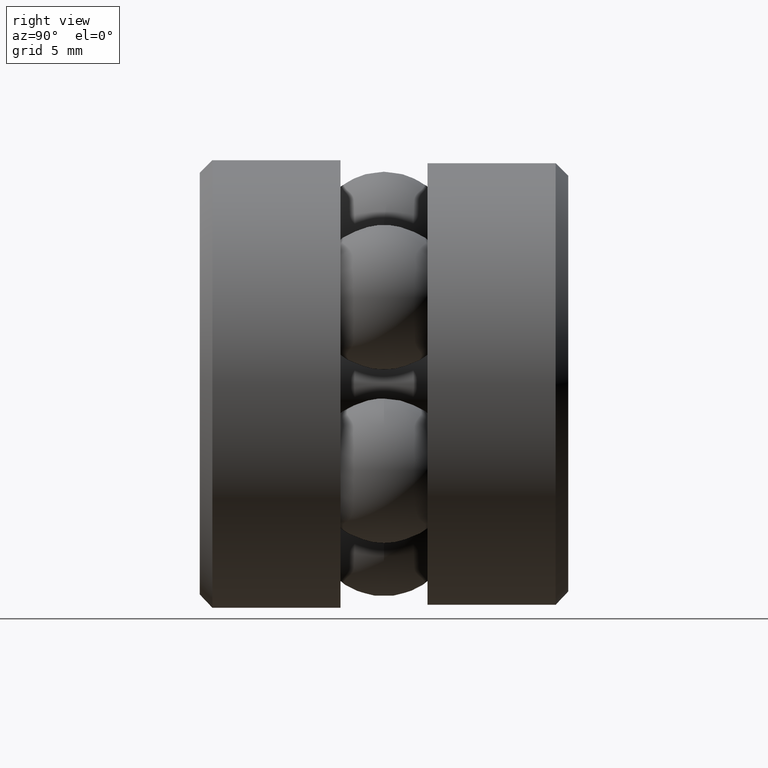
[diagram: clean part render]
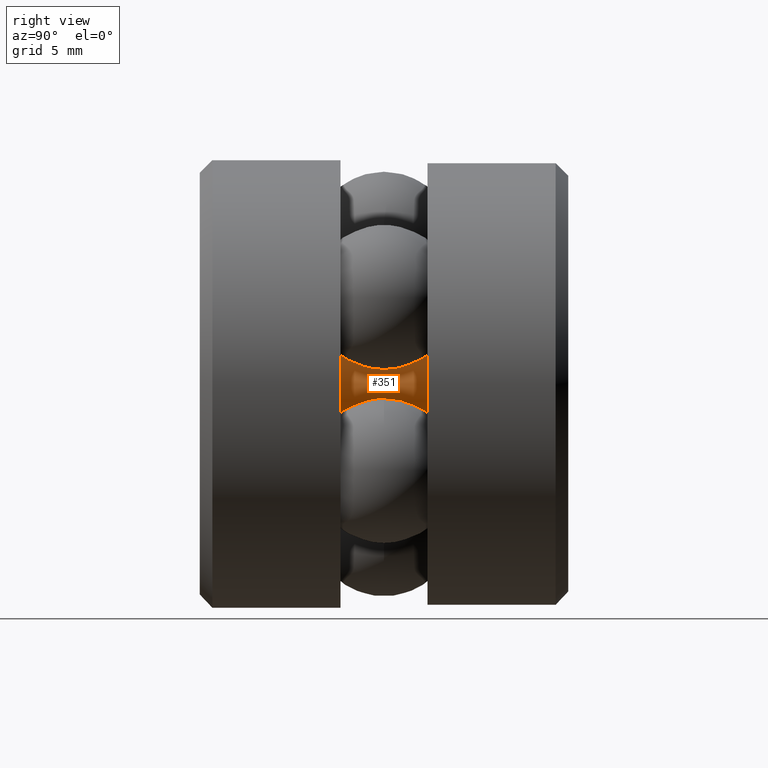
[diagram: same view with one face highlighted and labeled with its STEP entity id]
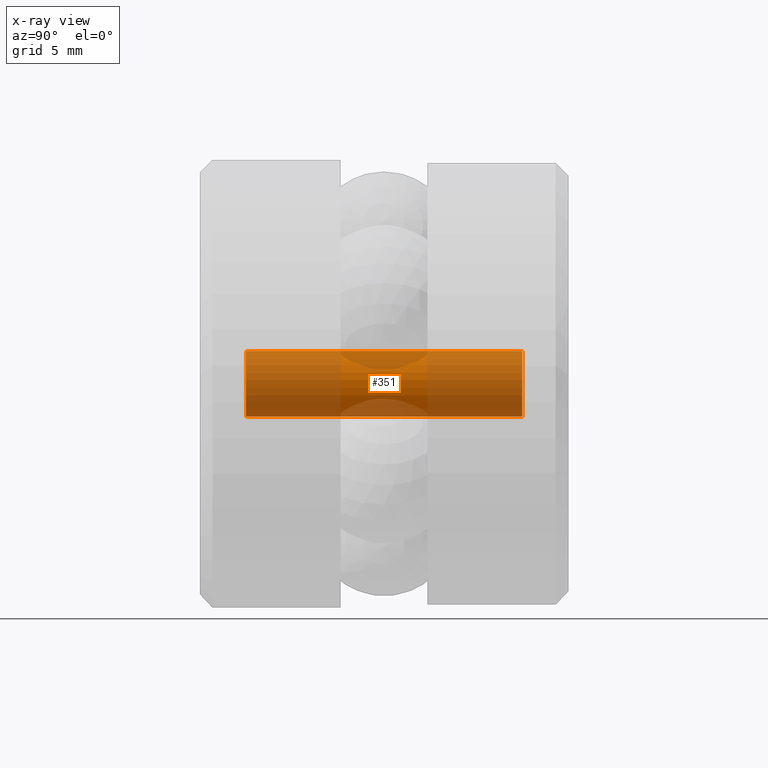
[diagram: x-ray of the same camera — body ghosted, the highlighted face saturated]
A machine part, right view. The second image highlights one B-rep face of the part: STEP entity #351.
The next image is the same camera in x-ray: the body ghosted, the highlighted face saturated — about 81% of this face is hidden behind the body in this view.
In plain terms, the highlighted cylindrical surface (bore or boss wall) has radius 1.9812 mm, axis along (-0, 1, -0).
Its self-contained STEP definition (entity closure, byte-faithful):
#19 = CARTESIAN_POINT ( 'NONE',  ( 0.0000000000000000000, 0.7656250000000000000, 0.07800000000000012500 ) ) ;
#83 = DIRECTION ( 'NONE',  ( 0.0000000000000000000, 0.0000000000000000000, 1.000000000000000000 ) ) ;
#100 = DIRECTION ( 'NONE',  ( -0.0000000000000000000, 1.000000000000000000, -0.0000000000000000000 ) ) ;
#106 = DIRECTION ( 'NONE',  ( 0.0000000000000000000, 0.0000000000000000000, 1.000000000000000000 ) ) ;
#121 = ORIENTED_EDGE ( 'NONE', *, *, #386, .T. ) ;
#126 = CARTESIAN_POINT ( 'NONE',  ( 0.0000000000000000000, 0.0000000000000000000, 0.0000000000000000000 ) ) ;
#150 = FACE_OUTER_BOUND ( 'NONE', #461, .T. ) ;
#169 = CIRCLE ( 'NONE', #467, 0.07800000000000012500 ) ;
#220 = EDGE_LOOP ( 'NONE', ( #374 ) ) ;
#224 = DIRECTION ( 'NONE',  ( 0.0000000000000000000, 0.0000000000000000000, 1.000000000000000000 ) ) ;
#238 = CARTESIAN_POINT ( 'NONE',  ( 0.0000000000000000000, 0.7656250000000000000, 0.0000000000000000000 ) ) ;
#317 = AXIS2_PLACEMENT_3D ( 'NONE', #468, #334, #224 ) ;
#334 = DIRECTION ( 'NONE',  ( -0.0000000000000000000, 1.000000000000000000, -0.0000000000000000000 ) ) ;
#342 = VERTEX_POINT ( 'NONE', #530 ) ;
#351 = ADVANCED_FACE ( 'NONE', ( #150, #475 ), #442, .T. ) ;
#374 = ORIENTED_EDGE ( 'NONE', *, *, #376, .F. ) ;
#376 = EDGE_CURVE ( 'NONE', #453, #453, #169, .T. ) ;
#386 = EDGE_CURVE ( 'NONE', #342, #342, #529, .T. ) ;
#394 = DIRECTION ( 'NONE',  ( -0.0000000000000000000, 1.000000000000000000, -0.0000000000000000000 ) ) ;
#442 = CYLINDRICAL_SURFACE ( 'NONE', #509, 0.07800000000000006900 ) ;
#453 = VERTEX_POINT ( 'NONE', #19 ) ;
#461 = EDGE_LOOP ( 'NONE', ( #121 ) ) ;
#467 = AXIS2_PLACEMENT_3D ( 'NONE', #238, #394, #83 ) ;
#468 = CARTESIAN_POINT ( 'NONE',  ( 0.0000000000000000000, 0.1093750000000000300, 0.0000000000000000000 ) ) ;
#475 = FACE_OUTER_BOUND ( 'NONE', #220, .T. ) ;
#509 = AXIS2_PLACEMENT_3D ( 'NONE', #126, #100, #106 ) ;
#529 = CIRCLE ( 'NONE', #317, 0.07800000000000001400 ) ;
#530 = CARTESIAN_POINT ( 'NONE',  ( 0.0000000000000000000, 0.1093750000000000300, 0.07800000000000001400 ) ) ;